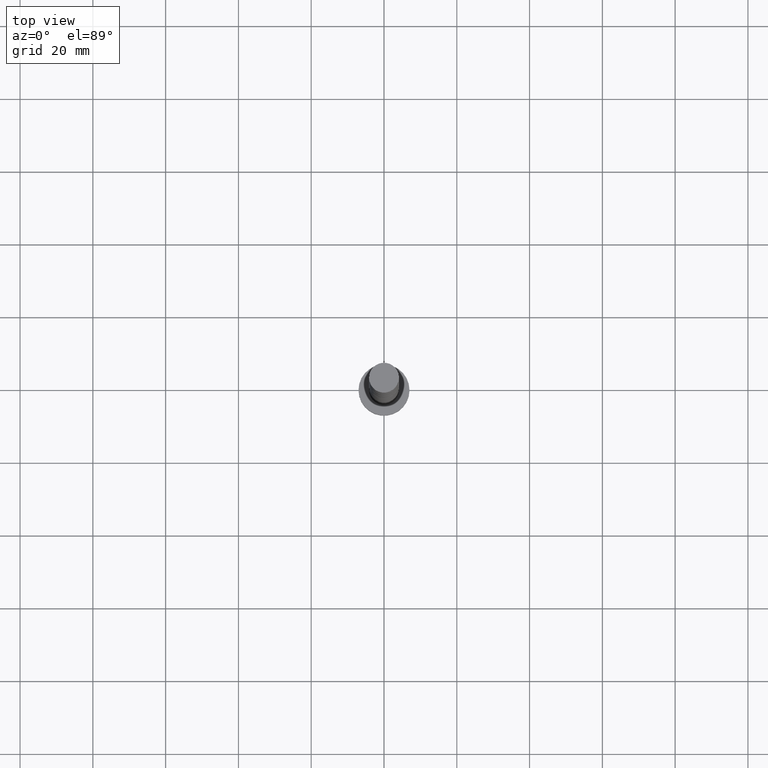
[diagram: clean part render]
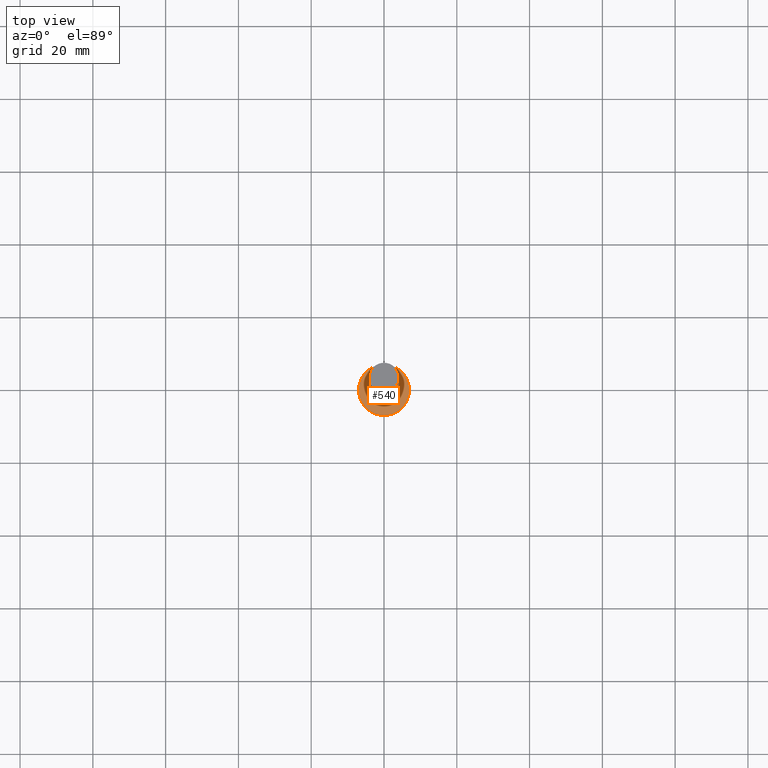
[diagram: same view with one face highlighted and labeled with its STEP entity id]
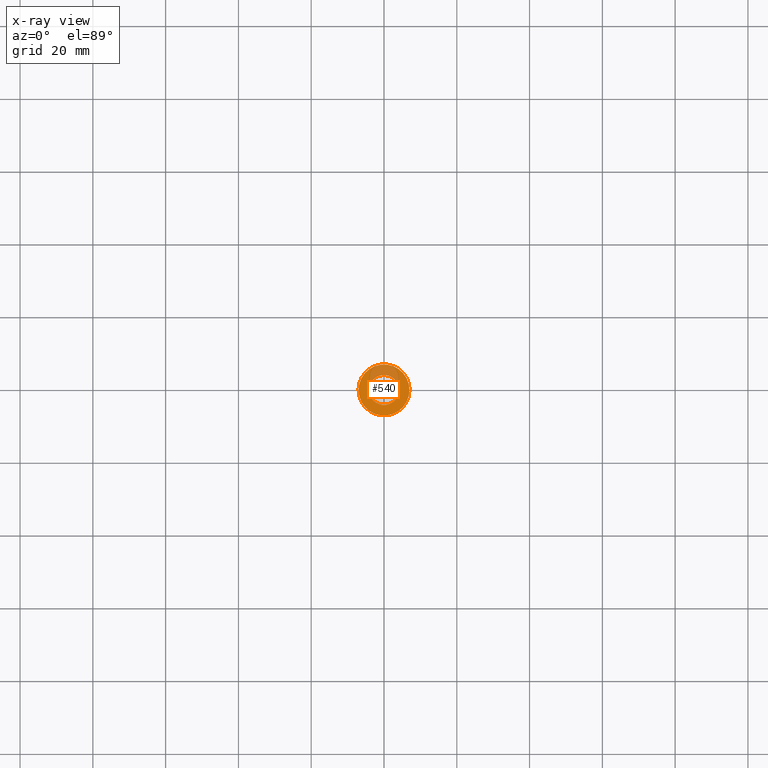
[diagram: x-ray of the same camera — body ghosted, the highlighted face saturated]
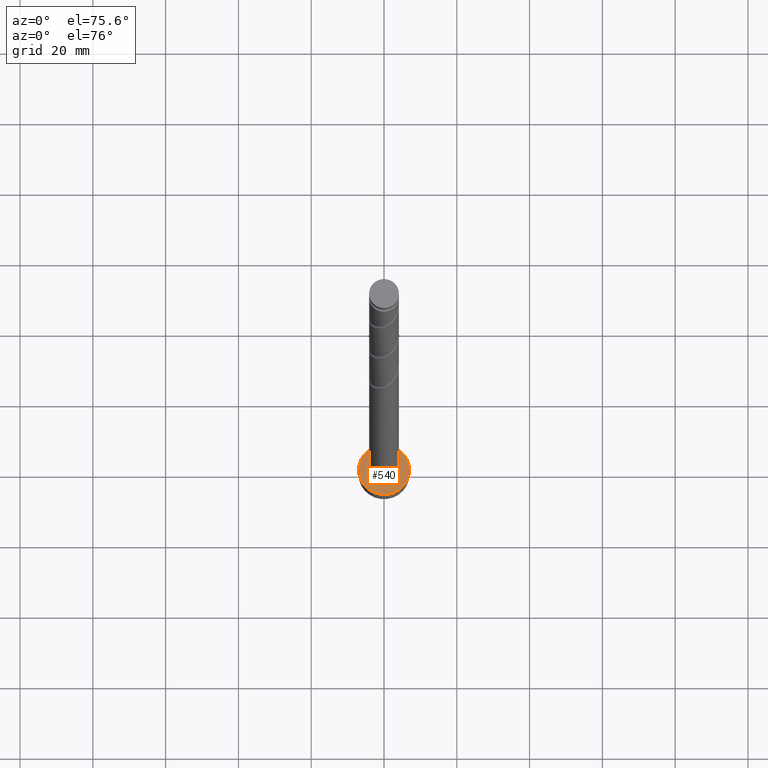
[diagram: same view with one face highlighted and labeled with its STEP entity id]
A machine part, top view. The second image highlights one B-rep face of the part: STEP entity #540.
The next image is the same camera in x-ray: the body ghosted, the highlighted face saturated — about 26% of this face is hidden behind the body in this view.
A second angle (auxiliary view) of the same face is appended — the face is thin or edge-on in the first view.
In plain terms, the highlighted planar face has unit normal (0, 0, 1).
Its self-contained STEP definition (entity closure, byte-faithful):
#21 = EDGE_CURVE ( 'NONE', #464, #818, #154, .T. ) ;
#111 = CARTESIAN_POINT ( 'NONE',  ( 7.000000000000000000, 8.572527594031473190E-16, 5.000000000000000000 ) ) ;
#124 = CIRCLE ( 'NONE', #1340, 7.000000000000000000 ) ;
#129 = EDGE_LOOP ( 'NONE', ( #778, #1039 ) ) ;
#154 = CIRCLE ( 'NONE', #1507, 4.099999999999999645 ) ;
#155 = EDGE_CURVE ( 'NONE', #818, #464, #1592, .T. ) ;
#182 = CIRCLE ( 'NONE', #1223, 7.000000000000000000 ) ;
#255 = ORIENTED_EDGE ( 'NONE', *, *, #155, .F. ) ;
#284 = EDGE_CURVE ( 'NONE', #1662, #1486, #182, .T. ) ;
#416 = CARTESIAN_POINT ( 'NONE',  ( 0.000000000000000000, 0.000000000000000000, 5.000000000000000000 ) ) ;
#451 = DIRECTION ( 'NONE',  ( 1.000000000000000000, 0.000000000000000000, 0.000000000000000000 ) ) ;
#464 = VERTEX_POINT ( 'NONE', #1150 ) ;
#505 = FACE_BOUND ( 'NONE', #1727, .T. ) ;
#540 = ADVANCED_FACE ( 'NONE', ( #505, #1017 ), #639, .T. ) ;
#589 = CARTESIAN_POINT ( 'NONE',  ( -7.000000000000000000, 0.000000000000000000, 5.000000000000000000 ) ) ;
#639 = PLANE ( 'NONE',  #1455 ) ;
#645 = ORIENTED_EDGE ( 'NONE', *, *, #21, .F. ) ;
#705 = DIRECTION ( 'NONE',  ( 0.000000000000000000, 0.000000000000000000, 1.000000000000000000 ) ) ;
#748 = DIRECTION ( 'NONE',  ( 1.000000000000000000, 0.000000000000000000, -0.000000000000000000 ) ) ;
#778 = ORIENTED_EDGE ( 'NONE', *, *, #284, .T. ) ;
#818 = VERTEX_POINT ( 'NONE', #1695 ) ;
#872 = CARTESIAN_POINT ( 'NONE',  ( 0.000000000000000000, 0.000000000000000000, 5.000000000000000000 ) ) ;
#963 = DIRECTION ( 'NONE',  ( 1.000000000000000000, 0.000000000000000000, 0.000000000000000000 ) ) ;
#983 = CARTESIAN_POINT ( 'NONE',  ( 0.000000000000000000, 0.000000000000000000, 5.000000000000000000 ) ) ;
#1017 = FACE_OUTER_BOUND ( 'NONE', #129, .T. ) ;
#1039 = ORIENTED_EDGE ( 'NONE', *, *, #1162, .T. ) ;
#1150 = CARTESIAN_POINT ( 'NONE',  ( -4.099999999999999645, 0.000000000000000000, 5.000000000000000000 ) ) ;
#1162 = EDGE_CURVE ( 'NONE', #1486, #1662, #124, .T. ) ;
#1223 = AXIS2_PLACEMENT_3D ( 'NONE', #983, #1414, #451 ) ;
#1252 = AXIS2_PLACEMENT_3D ( 'NONE', #416, #1623, #963 ) ;
#1294 = DIRECTION ( 'NONE',  ( 0.000000000000000000, 0.000000000000000000, 1.000000000000000000 ) ) ;
#1340 = AXIS2_PLACEMENT_3D ( 'NONE', #1349, #705, #1391 ) ;
#1349 = CARTESIAN_POINT ( 'NONE',  ( 0.000000000000000000, 0.000000000000000000, 5.000000000000000000 ) ) ;
#1391 = DIRECTION ( 'NONE',  ( 1.000000000000000000, 0.000000000000000000, 0.000000000000000000 ) ) ;
#1414 = DIRECTION ( 'NONE',  ( 0.000000000000000000, 0.000000000000000000, 1.000000000000000000 ) ) ;
#1417 = DIRECTION ( 'NONE',  ( 0.000000000000000000, 0.000000000000000000, 1.000000000000000000 ) ) ;
#1455 = AXIS2_PLACEMENT_3D ( 'NONE', #1712, #1294, #748 ) ;
#1486 = VERTEX_POINT ( 'NONE', #111 ) ;
#1507 = AXIS2_PLACEMENT_3D ( 'NONE', #872, #1417, #1575 ) ;
#1575 = DIRECTION ( 'NONE',  ( 1.000000000000000000, 0.000000000000000000, 0.000000000000000000 ) ) ;
#1592 = CIRCLE ( 'NONE', #1252, 4.099999999999999645 ) ;
#1623 = DIRECTION ( 'NONE',  ( 0.000000000000000000, 0.000000000000000000, 1.000000000000000000 ) ) ;
#1662 = VERTEX_POINT ( 'NONE', #589 ) ;
#1695 = CARTESIAN_POINT ( 'NONE',  ( 4.099999999999999645, 5.021051876504147385E-16, 5.000000000000000000 ) ) ;
#1712 = CARTESIAN_POINT ( 'NONE',  ( 0.000000000000000000, 0.000000000000000000, 5.000000000000000000 ) ) ;
#1727 = EDGE_LOOP ( 'NONE', ( #645, #255 ) ) ;